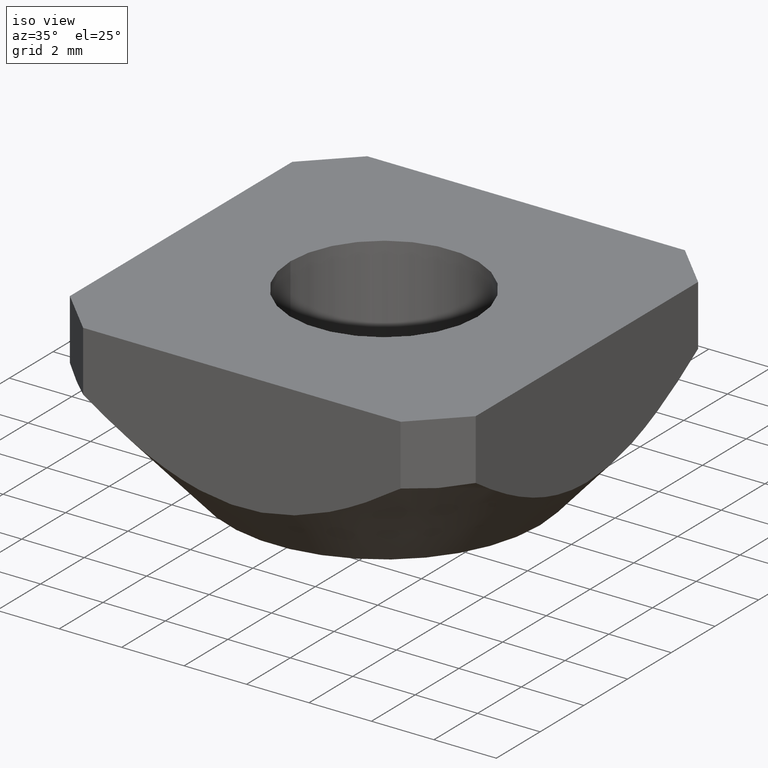
[diagram: clean part render]
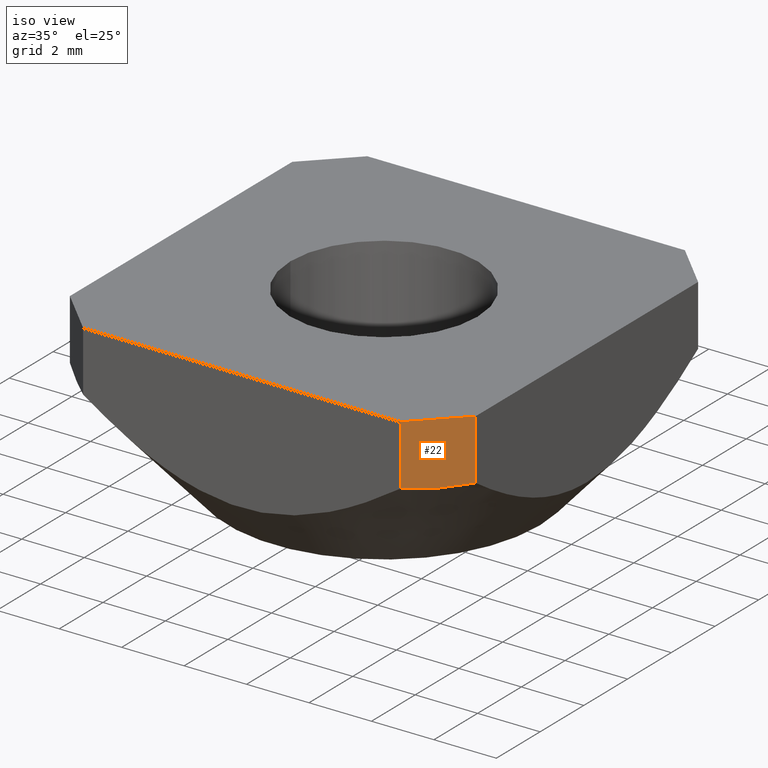
[diagram: same view with one face highlighted and labeled with its STEP entity id]
A machine part, iso view. The second image highlights one B-rep face of the part: STEP entity #22.
In plain terms, the highlighted planar face has unit normal (0.7071, -0.7071, 0).
Its self-contained STEP definition (entity closure, byte-faithful):
#22 = ADVANCED_FACE ( 'NONE', ( #152 ), #223, .T. ) ;
#31 = AXIS2_PLACEMENT_3D ( 'NONE', #271, #52, #362 ) ;
#32 = CARTESIAN_POINT ( 'NONE',  ( 6.500000000000000888, -5.085786437626907741, 0.0000000000000000000 ) ) ;
#35 = VECTOR ( 'NONE', #352, 1000.000000000000000 ) ;
#52 = DIRECTION ( 'NONE',  ( 0.7071067811865475727, -0.7071067811865475727, 0.0000000000000000000 ) ) ;
#55 = VECTOR ( 'NONE', #495, 1000.000000000000000 ) ;
#57 = VERTEX_POINT ( 'NONE', #500 ) ;
#61 = CARTESIAN_POINT ( 'NONE',  ( 6.500000000012471801, -5.085786437677110250, -1.933334202242371402 ) ) ;
#82 = CARTESIAN_POINT ( 'NONE',  ( 6.500000000012471801, -5.085786437677110250, -1.933334202242371402 ) ) ;
#96 = CARTESIAN_POINT ( 'NONE',  ( 5.085786437677106697, -6.500000000012474466, -1.933334202242371402 ) ) ;
#128 = VERTEX_POINT ( 'NONE', #32 ) ;
#132 = DIRECTION ( 'NONE',  ( 0.0000000000000000000, -0.0000000000000000000, -1.000000000000000000 ) ) ;
#141 = CARTESIAN_POINT ( 'NONE',  ( 5.085786437626905965, -6.500000000000003553, 0.0000000000000000000 ) ) ;
#152 = FACE_OUTER_BOUND ( 'NONE', #549, .T. ) ;
#168 = CARTESIAN_POINT ( 'NONE',  ( 5.085786437626905965, -6.500000000000003553, 0.0000000000000000000 ) ) ;
#174 = ORIENTED_EDGE ( 'NONE', *, *, #515, .F. ) ;
#195 = CARTESIAN_POINT ( 'NONE',  ( 6.500000000000000888, -5.085786437626907741, 0.0000000000000000000 ) ) ;
#223 = PLANE ( 'NONE',  #31 ) ;
#226 = LINE ( 'NONE', #195, #55 ) ;
#257 = LINE ( 'NONE', #168, #35 ) ;
#271 = CARTESIAN_POINT ( 'NONE',  ( 5.085786437626905965, -6.500000000000003553, 0.0000000000000000000 ) ) ;
#285 = ORIENTED_EDGE ( 'NONE', *, *, #332, .F. ) ;
#305 = VERTEX_POINT ( 'NONE', #310 ) ;
#309 = ORIENTED_EDGE ( 'NONE', *, *, #489, .T. ) ;
#310 = CARTESIAN_POINT ( 'NONE',  ( 5.085786437626906853, -6.500000000000002665, 0.0000000000000000000 ) ) ;
#319 = B_SPLINE_CURVE_WITH_KNOTS ( 'NONE', 3,
 ( #96, #546, #499, #61 ),
 .UNSPECIFIED., .F., .F.,
 ( 4, 4 ),
 ( 6.051050471646755322E-14, 0.002000000000007151873 ),
 .UNSPECIFIED. ) ;
#330 = VERTEX_POINT ( 'NONE', #82 ) ;
#332 = EDGE_CURVE ( 'NONE', #305, #128, #257, .T. ) ;
#352 = DIRECTION ( 'NONE',  ( 0.7071067811865473507, 0.7071067811865477948, 0.0000000000000000000 ) ) ;
#361 = LINE ( 'NONE', #141, #493 ) ;
#362 = DIRECTION ( 'NONE',  ( 0.7071067811865474617, 0.7071067811865474617, 0.0000000000000000000 ) ) ;
#403 = EDGE_CURVE ( 'NONE', #305, #57, #361, .T. ) ;
#429 = ORIENTED_EDGE ( 'NONE', *, *, #403, .T. ) ;
#489 = EDGE_CURVE ( 'NONE', #57, #330, #319, .T. ) ;
#493 = VECTOR ( 'NONE', #132, 1000.000000000000000 ) ;
#495 = DIRECTION ( 'NONE',  ( 0.0000000000000000000, 0.0000000000000000000, -1.000000000000000000 ) ) ;
#499 = CARTESIAN_POINT ( 'NONE',  ( 6.028595479244057032, -5.557190958382852486, -2.021894486498649446 ) ) ;
#500 = CARTESIAN_POINT ( 'NONE',  ( 5.085786437677106697, -6.500000000012474466, -1.933334202242371402 ) ) ;
#515 = EDGE_CURVE ( 'NONE', #128, #330, #226, .T. ) ;
#546 = CARTESIAN_POINT ( 'NONE',  ( 5.557190958361344357, -6.028595479226081189, -2.021894486487701315 ) ) ;
#549 = EDGE_LOOP ( 'NONE', ( #285, #429, #309, #174 ) ) ;